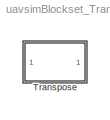
MODEL uavsimBlockset_Transpose
KIND library
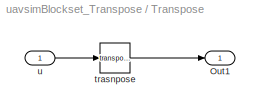
BLOCK [SubSystem] Transpose
  FunctionWithSeparateData = off
  MaskHideContents = off
  MinAlgLoopOccurrences = off
  Opaque = off
  Ports = [1, 1]
  PropExecContextOutsideSubsystem = off
  RTWSystemCode = Auto
  RequestExecContextInheritance = off
  SID = 3955
BLOCK [Outport] Transpose/Out1
  IconDisplay = Port number
  SID = 3957
BLOCK [Math] Transpose/trasnpose
  Operator = transpose
  Ports = [1, 1]
  SID = 3954
BLOCK [Inport] Transpose/u
  IconDisplay = Port number
  SID = 3956
LINE Transpose/trasnpose:1 -> Transpose/Out1:1
LINE Transpose/u:1 -> Transpose/trasnpose:1
